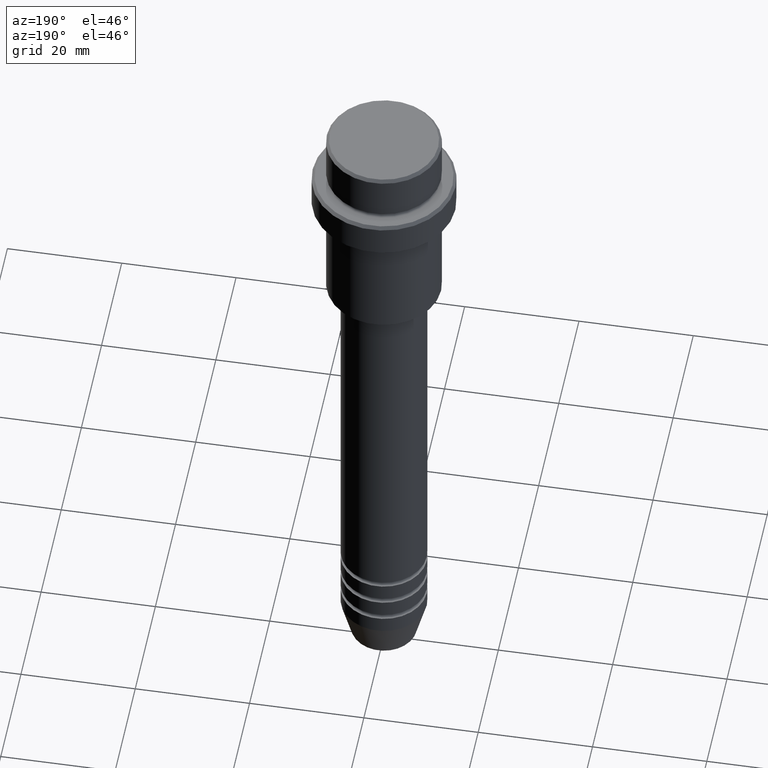
[diagram: clean part render]
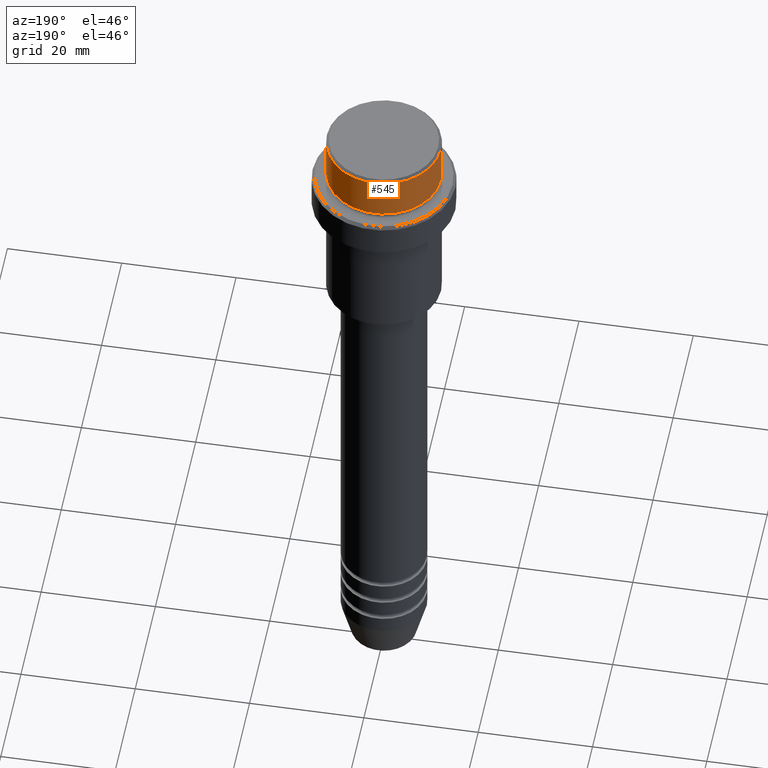
[diagram: same view with one face highlighted and labeled with its STEP entity id]
A machine part, auxiliary view. The second image highlights one B-rep face of the part: STEP entity #545.
In plain terms, the highlighted cylindrical surface (partial cylindrical patch) has radius 10 mm, axis along (-0, -0, 1).
Its self-contained STEP definition (entity closure, byte-faithful):
#39 = DIRECTION ( 'NONE',  ( 1.000000000000000000, 0.000000000000000000, 0.000000000000000000 ) ) ;
#72 = ORIENTED_EDGE ( 'NONE', *, *, #91, .T. ) ;
#74 = EDGE_CURVE ( 'NONE', #1156, #1062, #1287, .T. ) ;
#91 = EDGE_CURVE ( 'NONE', #929, #359, #619, .T. ) ;
#95 = DIRECTION ( 'NONE',  ( -0.000000000000000000, -0.000000000000000000, 1.000000000000000000 ) ) ;
#108 = DIRECTION ( 'NONE',  ( 1.000000000000000000, 0.000000000000000000, 0.000000000000000000 ) ) ;
#219 = DIRECTION ( 'NONE',  ( -0.000000000000000000, -0.000000000000000000, 1.000000000000000000 ) ) ;
#222 = EDGE_CURVE ( 'NONE', #1156, #929, #721, .T. ) ;
#314 = DIRECTION ( 'NONE',  ( -0.000000000000000000, -0.000000000000000000, 1.000000000000000000 ) ) ;
#359 = VERTEX_POINT ( 'NONE', #830 ) ;
#392 = AXIS2_PLACEMENT_3D ( 'NONE', #806, #1243, #39 ) ;
#424 = DIRECTION ( 'NONE',  ( 1.000000000000000000, 0.000000000000000000, 0.000000000000000000 ) ) ;
#545 = ADVANCED_FACE ( 'NONE', ( #624 ), #1408, .T. ) ;
#610 = AXIS2_PLACEMENT_3D ( 'NONE', #896, #1220, #108 ) ;
#619 = LINE ( 'NONE', #1404, #1344 ) ;
#624 = FACE_OUTER_BOUND ( 'NONE', #1036, .T. ) ;
#658 = CARTESIAN_POINT ( 'NONE',  ( 9.999999999999998224, 0.000000000000000000, -7.999999999999998224 ) ) ;
#685 = CIRCLE ( 'NONE', #392, 9.999999999999998224 ) ;
#721 = CIRCLE ( 'NONE', #610, 9.999999999999998224 ) ;
#806 = CARTESIAN_POINT ( 'NONE',  ( 0.000000000000000000, 0.000000000000000000, -0.4999999999999970024 ) ) ;
#830 = CARTESIAN_POINT ( 'NONE',  ( -9.999999999999998224, 1.224646799147353059E-15, -0.4999999999999970024 ) ) ;
#837 = CARTESIAN_POINT ( 'NONE',  ( 9.999999999999998224, 0.000000000000000000, -0.4999999999999970024 ) ) ;
#896 = CARTESIAN_POINT ( 'NONE',  ( 0.000000000000000000, 0.000000000000000000, -7.999999999999998224 ) ) ;
#929 = VERTEX_POINT ( 'NONE', #997 ) ;
#937 = VECTOR ( 'NONE', #314, 1000.000000000000000 ) ;
#951 = CARTESIAN_POINT ( 'NONE',  ( 0.000000000000000000, 0.000000000000000000, 0.000000000000000000 ) ) ;
#995 = ORIENTED_EDGE ( 'NONE', *, *, #1388, .T. ) ;
#997 = CARTESIAN_POINT ( 'NONE',  ( -9.999999999999998224, 1.224646799147353059E-15, -7.999999999999998224 ) ) ;
#1009 = ORIENTED_EDGE ( 'NONE', *, *, #74, .F. ) ;
#1036 = EDGE_LOOP ( 'NONE', ( #1134, #72, #995, #1009 ) ) ;
#1062 = VERTEX_POINT ( 'NONE', #837 ) ;
#1103 = AXIS2_PLACEMENT_3D ( 'NONE', #951, #95, #424 ) ;
#1134 = ORIENTED_EDGE ( 'NONE', *, *, #222, .T. ) ;
#1156 = VERTEX_POINT ( 'NONE', #658 ) ;
#1220 = DIRECTION ( 'NONE',  ( -0.000000000000000000, -0.000000000000000000, 1.000000000000000000 ) ) ;
#1243 = DIRECTION ( 'NONE',  ( 0.000000000000000000, 0.000000000000000000, -1.000000000000000000 ) ) ;
#1274 = CARTESIAN_POINT ( 'NONE',  ( 9.999999999999998224, 0.000000000000000000, 0.000000000000000000 ) ) ;
#1287 = LINE ( 'NONE', #1274, #937 ) ;
#1344 = VECTOR ( 'NONE', #219, 1000.000000000000000 ) ;
#1388 = EDGE_CURVE ( 'NONE', #359, #1062, #685, .T. ) ;
#1404 = CARTESIAN_POINT ( 'NONE',  ( -9.999999999999998224, 1.224646799147353059E-15, 0.000000000000000000 ) ) ;
#1408 = CYLINDRICAL_SURFACE ( 'NONE', #1103, 9.999999999999998224 ) ;